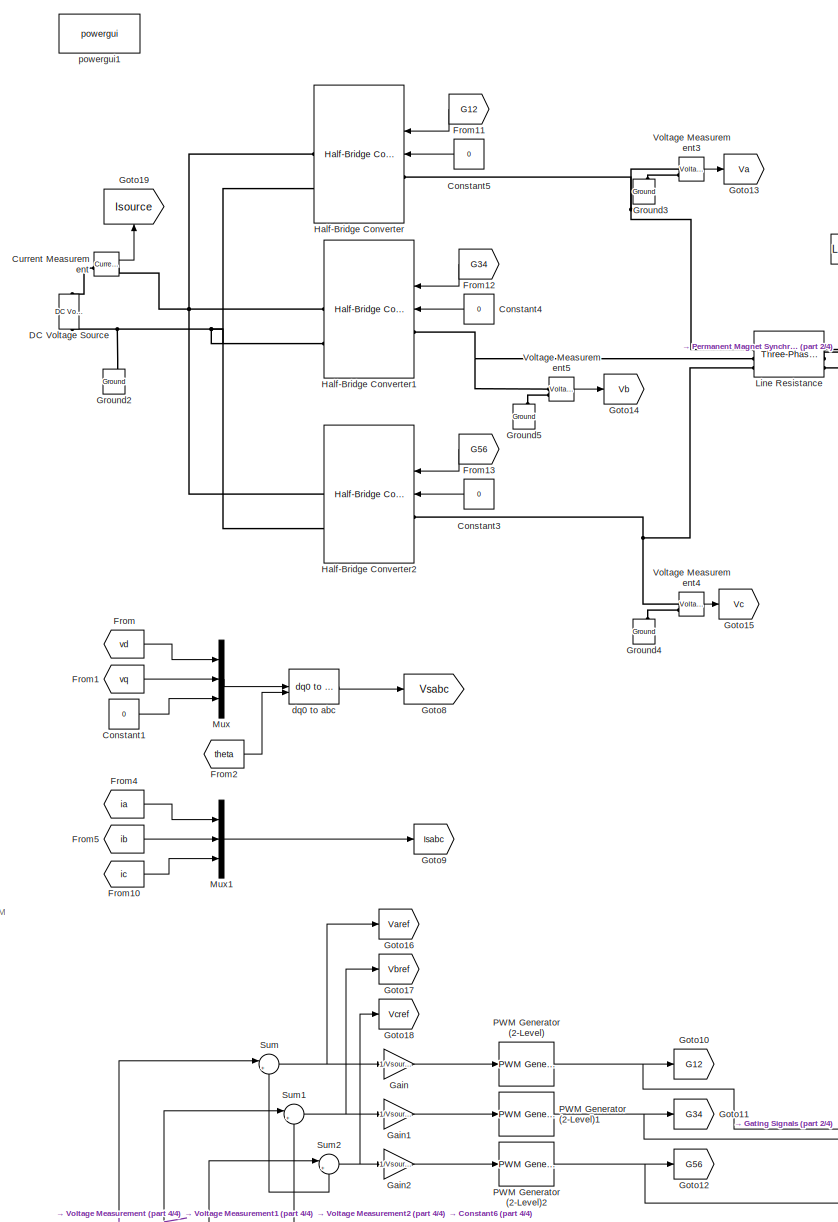
[diagram: root canvas - part 1/4, center side, full height]
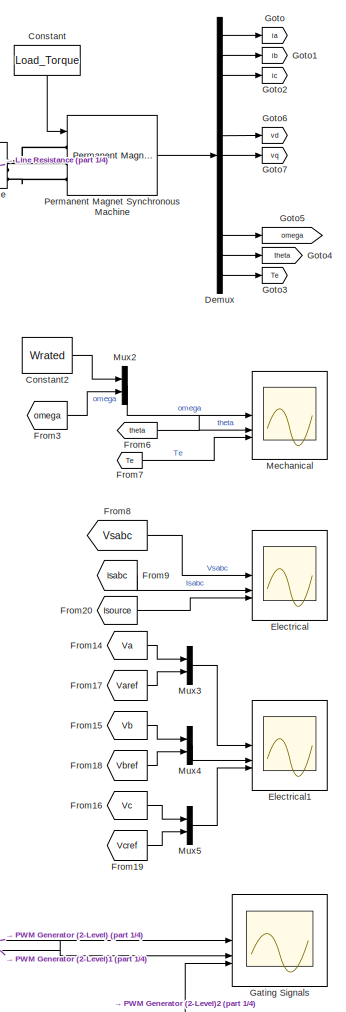
[diagram: root canvas - part 2/4, middle right region]
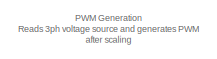
[diagram: root canvas - part 3/4, middle left region]
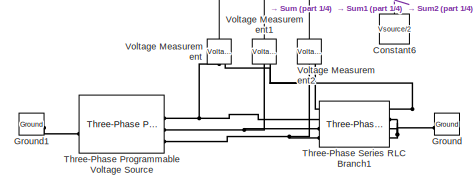
[diagram: root canvas - part 4/4, bottom left region]
MODEL slx_4a5b8888a4de
KIND model
CONFIG AbsTol = auto
CONFIG EnableMultiTasking = off
CONFIG FixedStep = auto
CONFIG InitFcn = MotorSimulationParams
CONFIG MaxStep = auto
CONFIG MinStep = auto
CONFIG RelTol = 1e-3
CONFIG SampleTimeConstraint = Unconstrained
CONFIG SolverName = VariableStepAuto
CONFIG StartTime = 0.0
CONFIG StopTime = 5
BLOCK [Constant] Constant
  NameLocation = left
  Value = Load_Torque
BLOCK [Constant] Constant1
  Value = 0
BLOCK [Constant] Constant2
  Value = Wrated
BLOCK [Constant] Constant3
  NameLocation = top
  Value = 0
BLOCK [Constant] Constant4
  NameLocation = top
  Value = 0
BLOCK [Constant] Constant5
  NameLocation = top
  Value = 0
BLOCK [Constant] Constant6
  NameLocation = right
  Value = Vsource/2
BLOCK [Reference] Current Measurement  REF=spsCurrentMeasurementLib/Current Measurement
  LibrarySourceBlock = sps_lib/Sensors and Measurements/Current Measurement
  SourceBlock = spsCurrentMeasurementLib/Current Measurement
  SourceType = Current Measurement
  UserDataPersistent = on
BLOCK [Reference] DC Voltage Source  REF=spsDCVoltageSourceLib/DC Voltage Source
  LibrarySourceBlock = sps_lib/Sources/DC Voltage Source
  SourceBlock = spsDCVoltageSourceLib/DC Voltage Source
  SourceType = DC Voltage Source
BLOCK [Demux] Demux
  Outputs = 13
BLOCK [Scope] Electrical
  Floating = off
  NumInputPorts = 3
  ScopeSpecificationString = Simulink.scopes.TimeScopeBlockCfg('CurrentConfiguration', extmgr.ConfigurationSet(extmgr.Configuration('Core','General UI',true),extmgr.Configuration('Core','Source UI',true),extmgr.Configuration('Sources','WiredSimulink',true,'DataLoggingVariableName','ScopeData1'),extmgr.Configuration('Visuals','Time Domain',true,'SerializedDisplays',{struct('MinYLimReal','-98.73057','MaxYLimReal','98.62907','YL...<+3426ch>
BLOCK [Scope] Electrical1
  Floating = off
  NumInputPorts = 3
  ScopeSpecificationString = Simulink.scopes.TimeScopeBlockCfg('CurrentConfiguration', extmgr.ConfigurationSet(extmgr.Configuration('Core','General UI',true),extmgr.Configuration('Core','Source UI',true),extmgr.Configuration('Sources','WiredSimulink',true,'DataLoggingVariableName','ScopeData1'),extmgr.Configuration('Visuals','Time Domain',true,'SerializedDisplays',{struct('MinYLimReal','-1.75292','MaxYLimReal','7.25298','YLab...<+3320ch>
BLOCK [From] From
  GotoTag = vd
BLOCK [From] From1
  GotoTag = vq
BLOCK [From] From10
  GotoTag = ic
BLOCK [From] From11
  GotoTag = G12
  NameLocation = top
BLOCK [From] From12
  GotoTag = G34
  NameLocation = top
BLOCK [From] From13
  GotoTag = G56
  NameLocation = top
BLOCK [From] From14
  GotoTag = Va
BLOCK [From] From15
  GotoTag = Vb
BLOCK [From] From16
  GotoTag = Vc
BLOCK [From] From17
  GotoTag = Varef
BLOCK [From] From18
  GotoTag = Vbref
BLOCK [From] From19
  GotoTag = Vcref
BLOCK [From] From2
  GotoTag = theta
BLOCK [From] From20
  GotoTag = Isource
BLOCK [From] From3
  GotoTag = omega
BLOCK [From] From4
  GotoTag = ia
BLOCK [From] From5
  GotoTag = ib
BLOCK [From] From6
  GotoTag = theta
BLOCK [From] From7
  GotoTag = Te
BLOCK [From] From8
  GotoTag = Vsabc
BLOCK [From] From9
  GotoTag = Isabc
BLOCK [Gain] Gain
  Gain = 1/Vsource
BLOCK [Gain] Gain1
  Gain = 1/Vsource
BLOCK [Gain] Gain2
  Gain = 1/Vsource
BLOCK [Scope] Gating Signals
  Floating = off
  NumInputPorts = 3
  ScopeSpecificationString = Simulink.scopes.TimeScopeBlockCfg('CurrentConfiguration', extmgr.ConfigurationSet(extmgr.Configuration('Core','General UI',true),extmgr.Configuration('Core','Source UI',true),extmgr.Configuration('Sources','WiredSimulink',true,'DataLoggingVariableName','ScopeData1'),extmgr.Configuration('Visuals','Time Domain',true,'SerializedDisplays',{struct('MinYLimReal','-10','MaxYLimReal','10','YLabelReal',''...<+2553ch>
BLOCK [Goto] Goto
  GotoTag = ia
BLOCK [Goto] Goto1
  GotoTag = ib
BLOCK [Goto] Goto10
  GotoTag = G12
BLOCK [Goto] Goto11
  GotoTag = G34
BLOCK [Goto] Goto12
  GotoTag = G56
BLOCK [Goto] Goto13
  GotoTag = Va
BLOCK [Goto] Goto14
  GotoTag = Vb
BLOCK [Goto] Goto15
  GotoTag = Vc
BLOCK [Goto] Goto16
  GotoTag = Varef
BLOCK [Goto] Goto17
  GotoTag = Vbref
BLOCK [Goto] Goto18
  GotoTag = Vcref
BLOCK [Goto] Goto19
  GotoTag = Isource
  NameLocation = right
BLOCK [Goto] Goto2
  GotoTag = ic
BLOCK [Goto] Goto3
  GotoTag = Te
BLOCK [Goto] Goto4
  GotoTag = theta
BLOCK [Goto] Goto5
  GotoTag = omega
BLOCK [Goto] Goto6
  GotoTag = vd
BLOCK [Goto] Goto7
  GotoTag = vq
BLOCK [Goto] Goto8
  GotoTag = Vsabc
BLOCK [Goto] Goto9
  GotoTag = Isabc
BLOCK [Reference] Ground  REF=spsGroundLib/Ground
  LibrarySourceBlock = sps_lib/Utilities/Ground
  NameLocation = top
  SourceBlock = spsGroundLib/Ground
  SourceType = Ground
BLOCK [Reference] Ground1  REF=spsGroundLib/Ground
  LibrarySourceBlock = sps_lib/Utilities/Ground
  SourceBlock = spsGroundLib/Ground
  SourceType = Ground
BLOCK [Reference] Ground2  REF=spsGroundLib/Ground
  LibrarySourceBlock = sps_lib/Utilities/Ground
  NameLocation = right
  SourceBlock = spsGroundLib/Ground
  SourceType = Ground
BLOCK [Reference] Ground3  REF=spsGroundLib/Ground
  LibrarySourceBlock = sps_lib/Utilities/Ground
  NameLocation = right
  SourceBlock = spsGroundLib/Ground
  SourceType = Ground
BLOCK [Reference] Ground4  REF=spsGroundLib/Ground
  LibrarySourceBlock = sps_lib/Utilities/Ground
  NameLocation = right
  SourceBlock = spsGroundLib/Ground
  SourceType = Ground
BLOCK [Reference] Ground5  REF=spsGroundLib/Ground
  LibrarySourceBlock = sps_lib/Utilities/Ground
  NameLocation = right
  SourceBlock = spsGroundLib/Ground
  SourceType = Ground
BLOCK [Reference] Half-Bridge Converter  REF=spsHalfBridgeConverterLib/Half-Bridge Converter
  LibrarySourceBlock = sps_lib/Power Electronics/Half-Bridge Converter
  NameLocation = top
  SourceBlock = spsHalfBridgeConverterLib/Half-Bridge Converter
  SourceType = Half-Bridge Converter
BLOCK [Reference] Half-Bridge Converter1  REF=spsHalfBridgeConverterLib/Half-Bridge Converter
  LibrarySourceBlock = sps_lib/Power Electronics/Half-Bridge Converter
  NameLocation = top
  SourceBlock = spsHalfBridgeConverterLib/Half-Bridge Converter
  SourceType = Half-Bridge Converter
BLOCK [Reference] Half-Bridge Converter2  REF=spsHalfBridgeConverterLib/Half-Bridge Converter
  LibrarySourceBlock = sps_lib/Power Electronics/Half-Bridge Converter
  NameLocation = top
  SourceBlock = spsHalfBridgeConverterLib/Half-Bridge Converter
  SourceType = Half-Bridge Converter
BLOCK [Reference] Line Resistance  REF=spsThreePhaseSeriesRLCBranchLib/Three-Phase
Series RLC Branch
  AttributesFormatString = \n
  LibrarySourceBlock = sps_lib/Passives/Three-Phase\nSeries RLC Branch
  SourceBlock = spsThreePhaseSeriesRLCBranchLib/Three-Phase\nSeries RLC Branch
  SourceType = Three-Phase Series RLC Branch
BLOCK [Scope] Mechanical
  Floating = off
  NumInputPorts = 3
  ScopeSpecificationString = Simulink.scopes.TimeScopeBlockCfg('CurrentConfiguration', extmgr.ConfigurationSet(extmgr.Configuration('Core','General UI',true),extmgr.Configuration('Core','Source UI',true),extmgr.Configuration('Sources','WiredSimulink',true),extmgr.Configuration('Visuals','Time Domain',true,'SerializedDisplays',{struct('MinYLimReal','-84.29003','MaxYLimReal','323.52482','YLabelReal','','MinYLimMag','0.00000','M...<+3023ch>
BLOCK [Mux] Mux
  DisplayOption = bar
  Inputs = 3
BLOCK [Mux] Mux1
  DisplayOption = bar
  Inputs = 3
BLOCK [Mux] Mux2
  DisplayOption = bar
  Inputs = 2
BLOCK [Mux] Mux3
  DisplayOption = bar
  Inputs = 2
BLOCK [Mux] Mux4
  DisplayOption = bar
  Inputs = 2
BLOCK [Mux] Mux5
  DisplayOption = bar
  Inputs = 2
BLOCK [Reference] PWM Generator (2-Level)  REF=spsPWMGenerator2LevelLib/PWM Generator
(2-Level)
  LibrarySourceBlock = sps_lib/Power Electronics/Power Electronics Control/PWM Generator\n(2-Level)
  SourceBlock = spsPWMGenerator2LevelLib/PWM Generator\n(2-Level)
  SourceType = PWM Generator (2-Level)
BLOCK [Reference] PWM Generator (2-Level)1  REF=spsPWMGenerator2LevelLib/PWM Generator
(2-Level)
  LibrarySourceBlock = sps_lib/Power Electronics/Power Electronics Control/PWM Generator\n(2-Level)
  SourceBlock = spsPWMGenerator2LevelLib/PWM Generator\n(2-Level)
  SourceType = PWM Generator (2-Level)
BLOCK [Reference] PWM Generator (2-Level)2  REF=spsPWMGenerator2LevelLib/PWM Generator
(2-Level)
  LibrarySourceBlock = sps_lib/Power Electronics/Power Electronics Control/PWM Generator\n(2-Level)
  SourceBlock = spsPWMGenerator2LevelLib/PWM Generator\n(2-Level)
  SourceType = PWM Generator (2-Level)
BLOCK [Reference] Permanent Magnet Synchronous Machine  REF=spsPermanentMagnetSynchronousMachineLib/Permanent Magnet
Synchronous Machine
  LibrarySourceBlock = sps_lib/Electrical Machines/Permanent Magnet\nSynchronous Machine
  SourceBlock = spsPermanentMagnetSynchronousMachineLib/Permanent Magnet\nSynchronous Machine
  SourceType = Permanent Magnet Synchronous Machine
BLOCK [Sum] Sum
  Inputs = |++
BLOCK [Sum] Sum1
  Inputs = |++
BLOCK [Sum] Sum2
  Inputs = |++
BLOCK [Reference] Three-Phase Programmable Voltage Source  REF=spsThreePhaseProgrammableVoltageSourceLib/Three-Phase
Programmable
Voltage Source
  LibrarySourceBlock = sps_lib/Sources/Three-Phase\nProgrammable\nVoltage Source
  SourceBlock = spsThreePhaseProgrammableVoltageSourceLib/Three-Phase\nProgrammable\nVoltage Source
  SourceType = Three-Phase Programmable Voltage Source
BLOCK [Reference] Three-Phase Series RLC Branch1  REF=spsThreePhaseSeriesRLCBranchLib/Three-Phase
Series RLC Branch
  AttributesFormatString = \n
  LibrarySourceBlock = sps_lib/Passives/Three-Phase\nSeries RLC Branch
  SourceBlock = spsThreePhaseSeriesRLCBranchLib/Three-Phase\nSeries RLC Branch
  SourceType = Three-Phase Series RLC Branch
BLOCK [Reference] Voltage Measurement  REF=spsVoltageMeasurementLib/Voltage Measurement
  LibrarySourceBlock = sps_lib/Sensors and Measurements/Voltage Measurement
  NameLocation = right
  SourceBlock = spsVoltageMeasurementLib/Voltage Measurement
  SourceType = Voltage Measurement
  UserDataPersistent = on
BLOCK [Reference] Voltage Measurement1  REF=spsVoltageMeasurementLib/Voltage Measurement
  LibrarySourceBlock = sps_lib/Sensors and Measurements/Voltage Measurement
  NameLocation = right
  SourceBlock = spsVoltageMeasurementLib/Voltage Measurement
  SourceType = Voltage Measurement
  UserDataPersistent = on
BLOCK [Reference] Voltage Measurement2  REF=spsVoltageMeasurementLib/Voltage Measurement
  LibrarySourceBlock = sps_lib/Sensors and Measurements/Voltage Measurement
  NameLocation = right
  SourceBlock = spsVoltageMeasurementLib/Voltage Measurement
  SourceType = Voltage Measurement
  UserDataPersistent = on
BLOCK [Reference] Voltage Measurement3  REF=spsVoltageMeasurementLib/Voltage Measurement
  LibrarySourceBlock = sps_lib/Sensors and Measurements/Voltage Measurement
  SourceBlock = spsVoltageMeasurementLib/Voltage Measurement
  SourceType = Voltage Measurement
  UserDataPersistent = on
BLOCK [Reference] Voltage Measurement4  REF=spsVoltageMeasurementLib/Voltage Measurement
  LibrarySourceBlock = sps_lib/Sensors and Measurements/Voltage Measurement
  SourceBlock = spsVoltageMeasurementLib/Voltage Measurement
  SourceType = Voltage Measurement
  UserDataPersistent = on
BLOCK [Reference] Voltage Measurement5  REF=spsVoltageMeasurementLib/Voltage Measurement
  LibrarySourceBlock = sps_lib/Sensors and Measurements/Voltage Measurement
  SourceBlock = spsVoltageMeasurementLib/Voltage Measurement
  SourceType = Voltage Measurement
  UserDataPersistent = on
BLOCK [Reference] dq0 to abc  REF=spsdq0toabcLib/dq0 to abc
  LibrarySourceBlock = sps_lib/Control/dq0 to abc
  SourceBlock = spsdq0toabcLib/dq0 to abc
  SourceType = dq0 to abc Transformation
BLOCK [Reference] powergui1  REF=sps_lib/powergui
  LibrarySourceBlock = sps_lib/powergui
  Priority = 1
  SourceBlock = sps_lib/powergui
  SourceType = PSB option menu block
ANNOTATION (root): PWM Generation Reads 3ph voltage source and generates PWM after scaling
LINE Constant1:1 -> Mux:3
LINE Constant2:1 -> Mux2:1
LINE Constant3:1 -> Half-Bridge Converter2:2
LINE Constant4:1 -> Half-Bridge Converter1:2
LINE Constant5:1 -> Half-Bridge Converter:2
NET Constant6:1 -> Sum1:2, Sum2:2, Sum:2
LINE Constant:1 -> Permanent Magnet Synchronous Machine:1
LINE Current Measurement:1 -> Goto19:1
LINE Demux:1 -> Goto:1
LINE Demux:11 -> Goto5:1
LINE Demux:12 -> Goto4:1
LINE Demux:13 -> Goto3:1
LINE Demux:2 -> Goto1:1
LINE Demux:3 -> Goto2:1
LINE Demux:6 -> Goto6:1
LINE Demux:7 -> Goto7:1
LINE From10:1 -> Mux1:3
LINE From11:1 -> Half-Bridge Converter:1
LINE From12:1 -> Half-Bridge Converter1:1
LINE From13:1 -> Half-Bridge Converter2:1
LINE From14:1 -> Mux3:1
LINE From15:1 -> Mux4:1
LINE From16:1 -> Mux5:1
LINE From17:1 -> Mux3:2
LINE From18:1 -> Mux4:2
LINE From19:1 -> Mux5:2
LINE From1:1 -> Mux:2
LINE From20:1 -> Electrical:3
LINE From2:1 -> dq0 to abc:2
LINE From3:1 -> Mux2:2
LINE From4:1 -> Mux1:1
LINE From5:1 -> Mux1:2
LINE From6:1 -> Mechanical:2
LINE From7:1 -> Mechanical:3
LINE From8:1 -> Electrical:1
LINE From9:1 -> Electrical:2
LINE From:1 -> Mux:1
LINE Gain1:1 -> PWM Generator (2-Level)1:1
LINE Gain2:1 -> PWM Generator (2-Level)2:1
LINE Gain:1 -> PWM Generator (2-Level):1
LINE Mux1:1 -> Goto9:1
LINE Mux2:1 -> Mechanical:1
LINE Mux3:1 -> Electrical1:1
LINE Mux4:1 -> Electrical1:2
LINE Mux5:1 -> Electrical1:3
LINE Mux:1 -> dq0 to abc:1
NET PWM Generator (2-Level)1:1 -> Gating Signals:2, Goto11:1
NET PWM Generator (2-Level)2:1 -> Gating Signals:3, Goto12:1
NET PWM Generator (2-Level):1 -> Gating Signals:1, Goto10:1
LINE Permanent Magnet Synchronous Machine:1 -> Demux:1
NET Sum1:1 -> Gain1:1, Goto17:1
NET Sum2:1 -> Gain2:1, Goto18:1
NET Sum:1 -> Gain:1, Goto16:1
LINE Voltage Measurement1:1 -> Sum1:1
LINE Voltage Measurement2:1 -> Sum2:1
LINE Voltage Measurement3:1 -> Goto13:1
LINE Voltage Measurement4:1 -> Goto15:1
LINE Voltage Measurement5:1 -> Goto14:1
LINE Voltage Measurement:1 -> Sum:1
LINE dq0 to abc:1 -> Goto8:1
PLINE Current Measurement:LConn1 -- DC Voltage Source:RConn1
PNET net1: Current Measurement:RConn1 -- Half-Bridge Converter1:RConn1 -- Half-Bridge Converter2:RConn1 -- Half-Bridge Converter:RConn1
PNET net2: DC Voltage Source:LConn1 -- Ground2:LConn1 -- Half-Bridge Converter1:RConn2 -- Half-Bridge Converter2:RConn2 -- Half-Bridge Converter:RConn2
PLINE Ground1:LConn1 -- Three-Phase Programmable Voltage Source:LConn1
PLINE Ground3:LConn1 -- Voltage Measurement3:LConn2
PLINE Ground4:LConn1 -- Voltage Measurement4:LConn2
PLINE Ground5:LConn1 -- Voltage Measurement5:LConn2
PNET net3: Ground:LConn1 -- Three-Phase Series RLC Branch1:RConn1 -- Three-Phase Series RLC Branch1:RConn2 -- Three-Phase Series RLC Branch1:RConn3 -- Voltage Measurement1:LConn2 -- Voltage Measurement2:LConn2 -- Voltage Measurement:LConn2
PNET net4: Half-Bridge Converter1:LConn1 -- Line Resistance:LConn2 -- Voltage Measurement5:LConn1
PNET net5: Half-Bridge Converter2:LConn1 -- Line Resistance:LConn3 -- Voltage Measurement4:LConn1
PNET net6: Half-Bridge Converter:LConn1 -- Line Resistance:LConn1 -- Voltage Measurement3:LConn1
PLINE Line Resistance:RConn1 -- Permanent Magnet Synchronous Machine:LConn1
PLINE Line Resistance:RConn2 -- Permanent Magnet Synchronous Machine:LConn2
PLINE Line Resistance:RConn3 -- Permanent Magnet Synchronous Machine:LConn3
PNET net7: Three-Phase Programmable Voltage Source:RConn1 -- Three-Phase Series RLC Branch1:LConn1 -- Voltage Measurement:LConn1
PNET net8: Three-Phase Programmable Voltage Source:RConn2 -- Three-Phase Series RLC Branch1:LConn2 -- Voltage Measurement1:LConn1
PNET net9: Three-Phase Programmable Voltage Source:RConn3 -- Three-Phase Series RLC Branch1:LConn3 -- Voltage Measurement2:LConn1
note: NET lines group one-source signal fan-out (src -> all destinations, sorted); 1:1 wires keep LINE; PNET lines group multi-terminal physical nets as a canonical sorted terminal list (undirected conserving connections); 2-terminal nets keep the pairwise PLINE form
